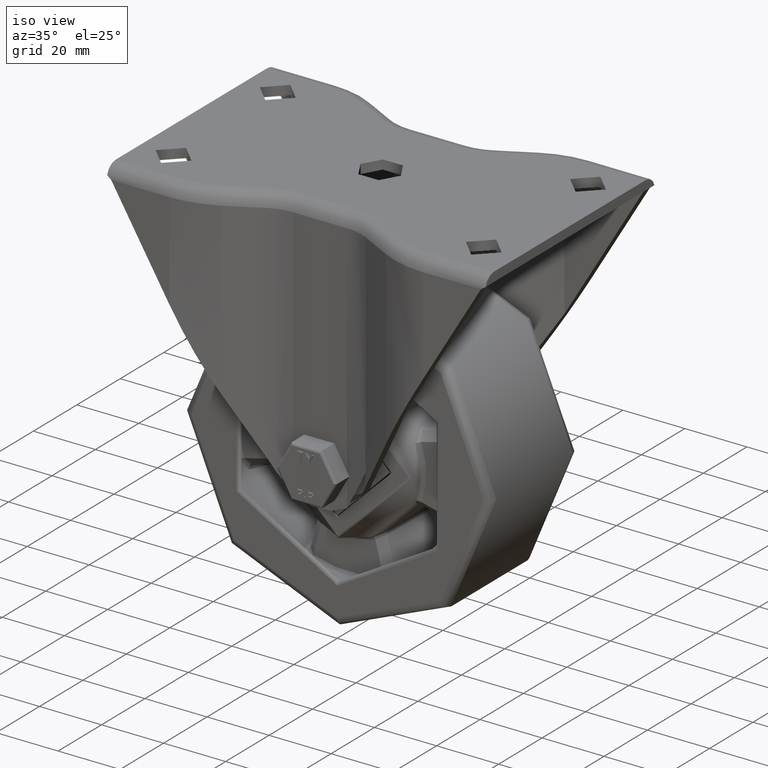
[diagram: clean part render]
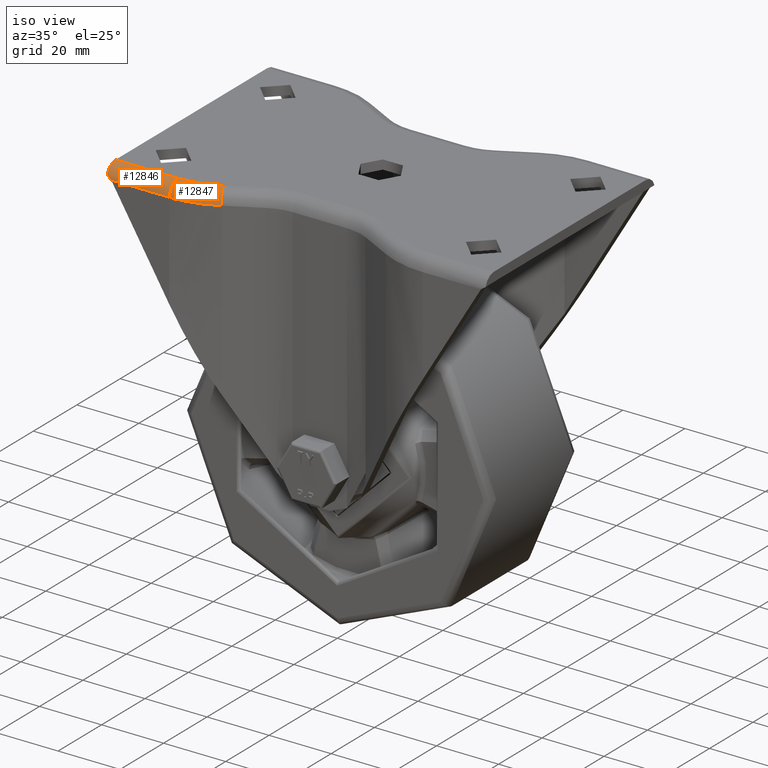
[diagram: same view with one multi-face feature highlighted, each face labeled with its STEP entity id]
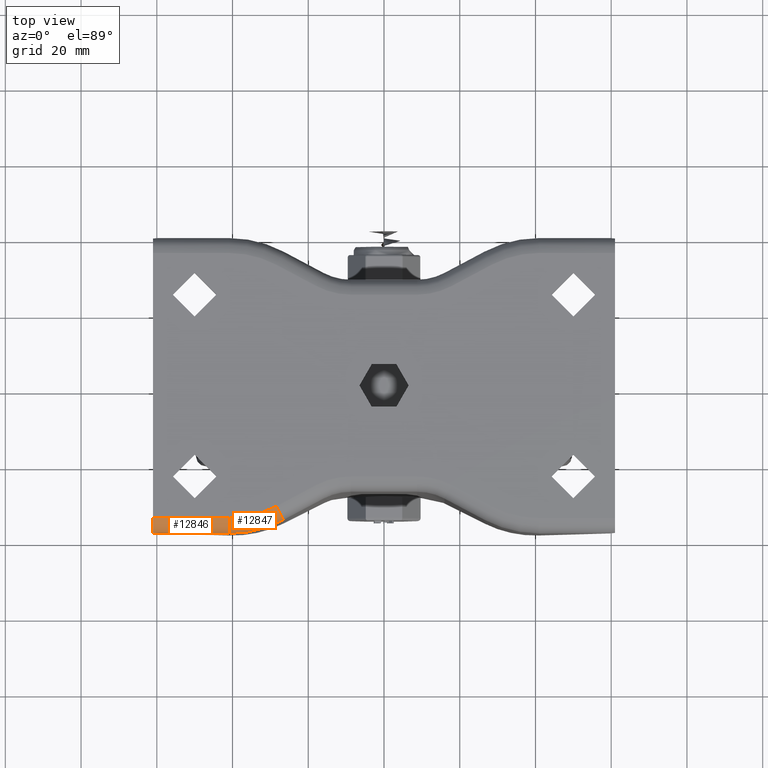
[diagram: same view with one multi-face feature highlighted, each face labeled with its STEP entity id]
A machine part, iso view. The highlighted faces form ONE feature: a constant-radius fillet chain: 2 tangent blend faces with common blend radius 4 mm. The faces share edges in the B-rep.
A second angle (top view) of the same feature is appended — it is thin or edge-on in the first view.
Their STEP definitions:
[1] entity #12846 (Cylinder):
#684=B_SPLINE_CURVE_WITH_KNOTS('',3,(#18433,#18434,#18435,#18436,#18437,
#18438,#18439,#18440),.UNSPECIFIED.,.F.,.F.,(4,2,2,4),(0.0341354256765779,
0.0762411859053673,0.152482371810735,0.198844205617732),.UNSPECIFIED.);
#1345=ELLIPSE('',#13907,4.66524308155358,4.);
#1382=CYLINDRICAL_SURFACE('',#13927,4.);
#1700=CIRCLE('',#13928,4.);
#1701=CIRCLE('',#13929,4.);
#2293=FACE_OUTER_BOUND('',#3129,.T.);
#3129=EDGE_LOOP('',(#8933,#8934,#8935,#8936,#8937,#8938));
#4101=LINE('',#18493,#4799);
#4109=LINE('',#18524,#4807);
#4799=VECTOR('',#15311,10.);
#4807=VECTOR('',#15341,10.);
#5499=VERTEX_POINT('',#18431);
#5500=VERTEX_POINT('',#18432);
#5512=VERTEX_POINT('',#18490);
#5513=VERTEX_POINT('',#18492);
#5521=VERTEX_POINT('',#18513);
#5525=VERTEX_POINT('',#18523);
#6777=EDGE_CURVE('',#5499,#5500,#684,.T.);
#6798=EDGE_CURVE('',#5513,#5512,#4101,.T.);
#6809=EDGE_CURVE('',#5500,#5521,#1345,.T.);
#6814=EDGE_CURVE('',#5521,#5525,#4109,.T.);
#6837=EDGE_CURVE('',#5513,#5525,#1700,.T.);
#6838=EDGE_CURVE('',#5512,#5499,#1701,.T.);
#8933=ORIENTED_EDGE('',*,*,#6809,.T.);
#8934=ORIENTED_EDGE('',*,*,#6814,.T.);
#8935=ORIENTED_EDGE('',*,*,#6837,.F.);
#8936=ORIENTED_EDGE('',*,*,#6798,.T.);
#8937=ORIENTED_EDGE('',*,*,#6838,.T.);
#8938=ORIENTED_EDGE('',*,*,#6777,.T.);
#12846=ADVANCED_FACE('',(#2293),#1382,.T.);
#13907=AXIS2_PLACEMENT_3D('',#18514,#15331,#15332);
#13927=AXIS2_PLACEMENT_3D('',#18575,#15389,#15390);
#13928=AXIS2_PLACEMENT_3D('',#18576,#15391,#15392);
#13929=AXIS2_PLACEMENT_3D('',#18577,#15393,#15394);
#15311=DIRECTION('',(-1.,0.,0.));
#15331=DIRECTION('center_axis',(0.857404411747813,0.,0.514643249946395));
#15332=DIRECTION('ref_axis',(-0.514643249946395,1.18988764917201E-16,0.857404411747813));
#15341=DIRECTION('',(1.,0.,0.));
#15389=DIRECTION('center_axis',(-1.,0.,0.));
#15390=DIRECTION('ref_axis',(0.,-0.707106781186549,0.707106781186546));
#15391=DIRECTION('center_axis',(1.,0.,0.));
#15392=DIRECTION('ref_axis',(0.,0.,1.));
#15393=DIRECTION('center_axis',(1.,0.,0.));
#15394=DIRECTION('ref_axis',(0.,-0.707106781186549,0.707106781186546));
#18431=CARTESIAN_POINT('',(420.043513280452,-89.0680926161398,-3.));
#18432=CARTESIAN_POINT('',(421.410737434667,-89.1946634076152,-3.94027814684541));
#18433=CARTESIAN_POINT('Ctrl Pts',(420.043513280452,-89.0680926161398,-2.99999999999987));
#18434=CARTESIAN_POINT('Ctrl Pts',(420.187505253598,-89.0746538123638,-3.02541140370673));
#18435=CARTESIAN_POINT('Ctrl Pts',(420.330981420974,-89.0852854553521,-3.06727931580474));
#18436=CARTESIAN_POINT('Ctrl Pts',(420.715421961526,-89.1213595651,-3.2280985166632));
#18437=CARTESIAN_POINT('Ctrl Pts',(420.940885511267,-89.1515382163785,-3.38391724826542));
#18438=CARTESIAN_POINT('Ctrl Pts',(421.227188611327,-89.1833120175946,-3.67380969735084));
#18439=CARTESIAN_POINT('Ctrl Pts',(421.327170631171,-89.1925845012987,-3.80105443021952));
#18440=CARTESIAN_POINT('Ctrl Pts',(421.410737434667,-89.1946634076152,-3.94027814684511));
#18490=CARTESIAN_POINT('',(420.043513280452,-85.1951092699324,0.));
#18492=CARTESIAN_POINT('',(440.166953390703,-85.1951092699324,0.));
#18493=CARTESIAN_POINT('',(440.166953390703,-85.1951092699324,0.));
#18513=CARTESIAN_POINT('',(421.446584519402,-89.1951092699324,-4.));
#18514=CARTESIAN_POINT('Origin',(421.446584519402,-85.1951092699324,-4.));
#18523=CARTESIAN_POINT('',(440.166953390703,-89.1951092699324,-4.));
#18524=CARTESIAN_POINT('',(440.166953390703,-89.1951092699324,-4.));
#18575=CARTESIAN_POINT('Origin',(440.166953390703,-85.1951092699324,-4.));
#18576=CARTESIAN_POINT('Origin',(440.166953390703,-85.1951092699324,-4.));
#18577=CARTESIAN_POINT('Origin',(420.043513280452,-85.1951092699324,-4.));
[2] entity #12847 (Torus):
#632=TOROIDAL_SURFACE('',#13930,26.5,4.);
#1691=CIRCLE('',#13900,26.5);
#1696=CIRCLE('',#13912,30.5);
#1700=CIRCLE('',#13928,4.);
#1702=CIRCLE('',#13931,4.);
#2294=FACE_OUTER_BOUND('',#3130,.T.);
#3130=EDGE_LOOP('',(#8939,#8940,#8941,#8942));
#5513=VERTEX_POINT('',#18492);
#5514=VERTEX_POINT('',#18494);
#5525=VERTEX_POINT('',#18523);
#5526=VERTEX_POINT('',#18527);
#6799=EDGE_CURVE('',#5514,#5513,#1691,.T.);
#6816=EDGE_CURVE('',#5525,#5526,#1696,.T.);
#6837=EDGE_CURVE('',#5513,#5525,#1700,.T.);
#6839=EDGE_CURVE('',#5514,#5526,#1702,.T.);
#8939=ORIENTED_EDGE('',*,*,#6837,.T.);
#8940=ORIENTED_EDGE('',*,*,#6816,.T.);
#8941=ORIENTED_EDGE('',*,*,#6839,.F.);
#8942=ORIENTED_EDGE('',*,*,#6799,.T.);
#12847=ADVANCED_FACE('',(#2294),#632,.T.);
#13900=AXIS2_PLACEMENT_3D('',#18495,#15312,#15313);
#13912=AXIS2_PLACEMENT_3D('',#18528,#15345,#15346);
#13928=AXIS2_PLACEMENT_3D('',#18576,#15391,#15392);
#13930=AXIS2_PLACEMENT_3D('',#18578,#15395,#15396);
#13931=AXIS2_PLACEMENT_3D('',#18579,#15397,#15398);
#15312=DIRECTION('center_axis',(0.,0.,-1.));
#15313=DIRECTION('ref_axis',(0.241921895599667,-0.970295726275997,0.));
#15345=DIRECTION('center_axis',(0.,0.,1.));
#15346=DIRECTION('ref_axis',(0.241921895599667,-0.970295726275997,0.));
#15391=DIRECTION('center_axis',(1.,0.,0.));
#15392=DIRECTION('ref_axis',(0.,0.,1.));
#15395=DIRECTION('center_axis',(0.,0.,-1.));
#15396=DIRECTION('ref_axis',(-1.,0.,0.));
#15397=DIRECTION('center_axis',(0.882947592858925,0.469471562785894,0.));
#15398=DIRECTION('ref_axis',(0.,0.,1.));
#18492=CARTESIAN_POINT('',(440.166953390703,-85.1951092699324,0.));
#18494=CARTESIAN_POINT('',(452.607949804529,-82.0932204806939,0.));
#18495=CARTESIAN_POINT('Origin',(440.166953390703,-58.6951092699324,0.));
#18523=CARTESIAN_POINT('',(440.166953390703,-89.1951092699324,-4.));
#18527=CARTESIAN_POINT('',(454.485836055673,-85.6250108521296,-4.));
#18528=CARTESIAN_POINT('Origin',(440.166953390703,-58.6951092699324,-4.));
#18576=CARTESIAN_POINT('Origin',(440.166953390703,-85.1951092699324,-4.));
#18578=CARTESIAN_POINT('Origin',(440.166953390703,-58.6951092699324,-4.));
#18579=CARTESIAN_POINT('Origin',(452.607949804529,-82.0932204806939,-4.));